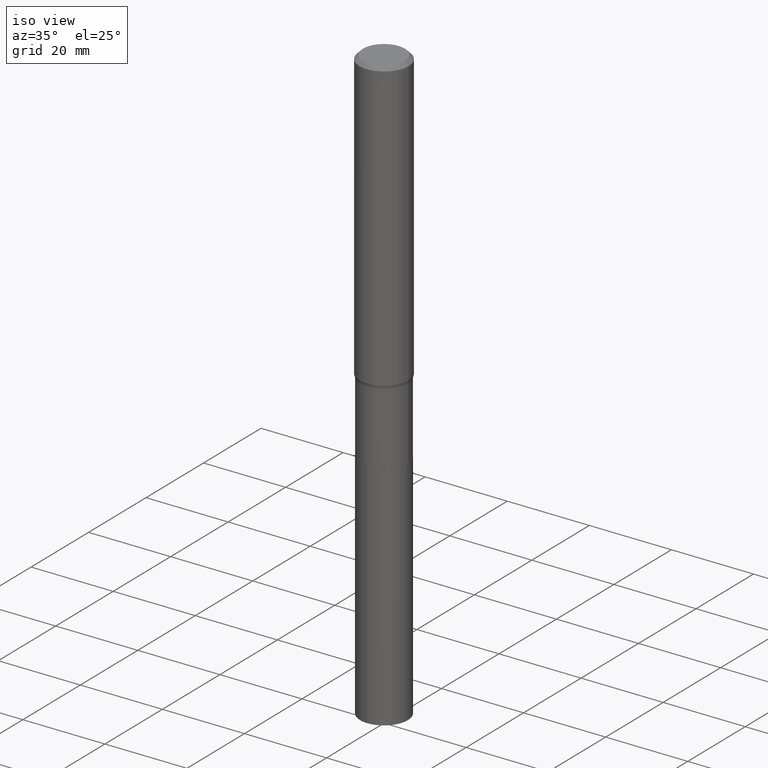
[diagram: clean part render]
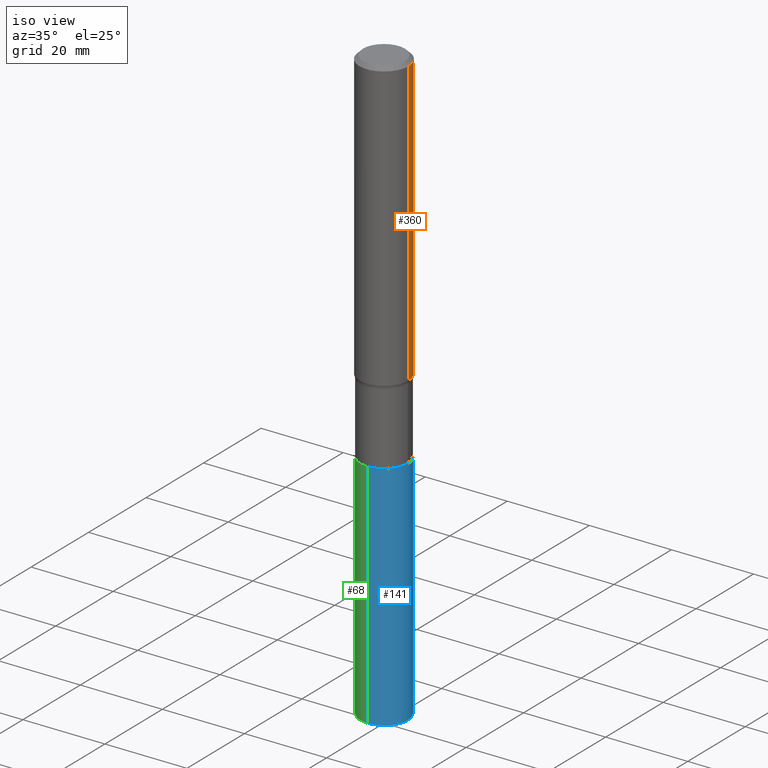
[diagram: same view with three faces highlighted in distinct colors, each labeled with its STEP entity id]
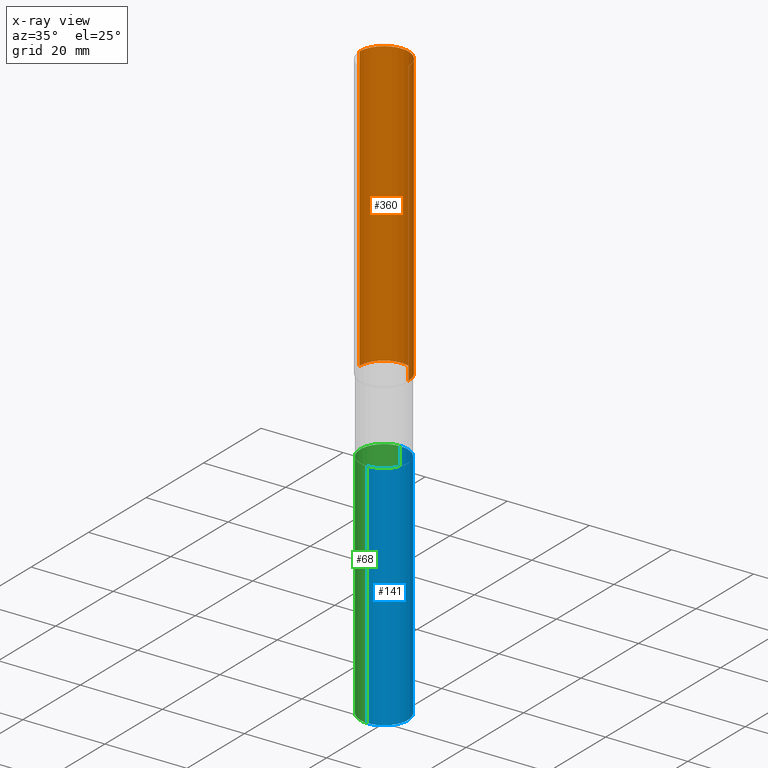
[diagram: x-ray of the same camera — body ghosted, the three highlighted faces saturated]
A machine part, iso view with three faces highlighted in distinct colors.
The next image is the same camera in x-ray (body ghosted, the three faces saturated) — at least one of them is partly hidden behind the body in this view.
Their STEP definitions:

[orange] entity #360 — the highlighted cylindrical surface (edge-blend (fillet) strip) has radius 5.9995 mm, axis along (-0, 0, 1).
#4 = DIRECTION ( 'NONE',  ( -2.445468806185136597E-29, 3.491481338843145583E-15, 1.000000000000000000 ) ) ;
#15 = VECTOR ( 'NONE', #250, 39.37007874015748143 ) ;
#30 = CARTESIAN_POINT ( 'NONE',  ( 0.2362000000000002153, -1.649375784469497708E-15, 1.151752954443001069E-29 ) ) ;
#43 = DIRECTION ( 'NONE',  ( 1.000000000000000000, -6.982962677686269077E-15, 0.000000000000000000 ) ) ;
#55 = ORIENTED_EDGE ( 'NONE', *, *, #57, .F. ) ;
#57 = EDGE_CURVE ( 'NONE', #370, #180, #324, .T. ) ;
#95 = CYLINDRICAL_SURFACE ( 'NONE', #411, 0.2362000000000002153 ) ;
#170 = CARTESIAN_POINT ( 'NONE',  ( -0.2362000000000003264, -7.963913396004768831E-15, -2.761640232929024830 ) ) ;
#175 = LINE ( 'NONE', #409, #15 ) ;
#180 = VERTEX_POINT ( 'NONE', #438 ) ;
#197 = EDGE_LOOP ( 'NONE', ( #268, #247, #207, #55 ) ) ;
#199 = CIRCLE ( 'NONE', #453, 0.2362000000000003819 ) ;
#207 = ORIENTED_EDGE ( 'NONE', *, *, #295, .F. ) ;
#215 = CIRCLE ( 'NONE', #288, 0.2361999999999999933 ) ;
#219 = CARTESIAN_POINT ( 'NONE',  ( 0.000000000000000000, 0.000000000000000000, 0.000000000000000000 ) ) ;
#232 = CARTESIAN_POINT ( 'NONE',  ( -0.2361999999999999933, -3.204657318987311234E-15, -0.03543000000000023908 ) ) ;
#247 = ORIENTED_EDGE ( 'NONE', *, *, #454, .T. ) ;
#250 = DIRECTION ( 'NONE',  ( -2.445468806185136877E-29, 3.491481338843145188E-15, 1.000000000000000000 ) ) ;
#267 = CARTESIAN_POINT ( 'NONE',  ( 6.753505043533784872E-29, -9.642215337870128381E-15, -2.761640232929024830 ) ) ;
#268 = ORIENTED_EDGE ( 'NONE', *, *, #327, .T. ) ;
#281 = FACE_OUTER_BOUND ( 'NONE', #197, .T. ) ;
#288 = AXIS2_PLACEMENT_3D ( 'NONE', #436, #4, #299 ) ;
#291 = DIRECTION ( 'NONE',  ( -2.445468806185136877E-29, 3.491481338843145188E-15, 1.000000000000000000 ) ) ;
#295 = EDGE_CURVE ( 'NONE', #180, #315, #215, .T. ) ;
#299 = DIRECTION ( 'NONE',  ( 1.000000000000000000, -6.982962677686266711E-15, 0.000000000000000000 ) ) ;
#315 = VERTEX_POINT ( 'NONE', #232 ) ;
#324 = LINE ( 'NONE', #30, #402 ) ;
#327 = EDGE_CURVE ( 'NONE', #370, #364, #199, .T. ) ;
#346 = DIRECTION ( 'NONE',  ( 1.000000000000000000, -6.982962677686266711E-15, 4.876176775795935793E-29 ) ) ;
#360 = ADVANCED_FACE ( 'NONE', ( #281 ), #95, .T. ) ;
#364 = VERTEX_POINT ( 'NONE', #170 ) ;
#369 = DIRECTION ( 'NONE',  ( -2.445468806185136597E-29, 3.491481338843145583E-15, 1.000000000000000000 ) ) ;
#370 = VERTEX_POINT ( 'NONE', #447 ) ;
#402 = VECTOR ( 'NONE', #291, 39.37007874015748143 ) ;
#409 = CARTESIAN_POINT ( 'NONE',  ( -0.2362000000000002153, 1.678301941865358169E-15, -1.161852468318209878E-29 ) ) ;
#411 = AXIS2_PLACEMENT_3D ( 'NONE', #219, #416, #346 ) ;
#416 = DIRECTION ( 'NONE',  ( -2.445468806185136597E-29, 3.491481338843145583E-15, 1.000000000000000000 ) ) ;
#436 = CARTESIAN_POINT ( 'NONE',  ( 8.664295980313998742E-31, -1.237031838352134818E-16, -0.03543000000000023908 ) ) ;
#438 = CARTESIAN_POINT ( 'NONE',  ( 0.2361999999999999933, -1.773078968304709711E-15, -0.03543000000000023908 ) ) ;
#447 = CARTESIAN_POINT ( 'NONE',  ( 0.2362000000000003264, -1.129159112233962806E-14, -2.761640232929024830 ) ) ;
#453 = AXIS2_PLACEMENT_3D ( 'NONE', #267, #369, #43 ) ;
#454 = EDGE_CURVE ( 'NONE', #364, #315, #175, .T. ) ;

[blue] entity #141 — the highlighted cylindrical surface (edge-blend (fillet) strip) has radius 5.8001 mm, axis along (-0, 0, 1).
#7 = CARTESIAN_POINT ( 'NONE',  ( -1.594559527449519318E-15, -0.2283500000000199537, -5.708700000000000330 ) ) ;
#11 = EDGE_CURVE ( 'NONE', #209, #405, #154, .T. ) ;
#12 = CARTESIAN_POINT ( 'NONE',  ( 1.622524337108273756E-15, 0.2283499999999878405, -3.481700000000000905 ) ) ;
#35 = VECTOR ( 'NONE', #330, 39.37007874015748143 ) ;
#47 = VERTEX_POINT ( 'NONE', #319 ) ;
#48 = DIRECTION ( 'NONE',  ( -2.445459217107233481E-29, 3.491495070948478760E-15, 1.000000000000000000 ) ) ;
#64 = CARTESIAN_POINT ( 'NONE',  ( 8.514388742494790971E-29, -1.215629057745018152E-14, -3.481700000000000017 ) ) ;
#71 = ORIENTED_EDGE ( 'NONE', *, *, #415, .F. ) ;
#79 = CARTESIAN_POINT ( 'NONE',  ( 1.396042641899260512E-28, -1.993185010045244784E-14, -5.708700000000001218 ) ) ;
#80 = AXIS2_PLACEMENT_3D ( 'NONE', #79, #365, #201 ) ;
#88 = DIRECTION ( 'NONE',  ( -6.982962677686265922E-15, -1.000000000000000000, 2.392684907960817401E-15 ) ) ;
#104 = FACE_OUTER_BOUND ( 'NONE', #169, .T. ) ;
#113 = AXIS2_PLACEMENT_3D ( 'NONE', #64, #220, #88 ) ;
#124 = AXIS2_PLACEMENT_3D ( 'NONE', #152, #423, #356 ) ;
#132 = CARTESIAN_POINT ( 'NONE',  ( -1.594559527449573552E-15, -0.2283500000000121544, -3.481699999999999573 ) ) ;
#141 = ADVANCED_FACE ( 'NONE', ( #104 ), #388, .T. ) ;
#148 = CIRCLE ( 'NONE', #80, 0.2283499999999999974 ) ;
#149 = VERTEX_POINT ( 'NONE', #7 ) ;
#152 = CARTESIAN_POINT ( 'NONE',  ( 8.514388742494790971E-29, -1.215629057745018152E-14, -3.481700000000000017 ) ) ;
#154 = CIRCLE ( 'NONE', #124, 0.2283499999999999974 ) ;
#169 = EDGE_LOOP ( 'NONE', ( #242, #306, #361, #71 ) ) ;
#201 = DIRECTION ( 'NONE',  ( -6.982962677686265922E-15, -1.000000000000000000, 4.785369815921634803E-15 ) ) ;
#209 = VERTEX_POINT ( 'NONE', #331 ) ;
#220 = DIRECTION ( 'NONE',  ( -2.445459217107233481E-29, 3.491495070948479155E-15, 1.000000000000000000 ) ) ;
#231 = EDGE_CURVE ( 'NONE', #47, #405, #234, .T. ) ;
#234 = LINE ( 'NONE', #12, #35 ) ;
#242 = ORIENTED_EDGE ( 'NONE', *, *, #326, .T. ) ;
#245 = VECTOR ( 'NONE', #48, 39.37007874015748143 ) ;
#306 = ORIENTED_EDGE ( 'NONE', *, *, #231, .T. ) ;
#319 = CARTESIAN_POINT ( 'NONE',  ( 1.622524337108300972E-15, 0.2283499999999800689, -5.708700000000002106 ) ) ;
#326 = EDGE_CURVE ( 'NONE', #149, #47, #148, .T. ) ;
#330 = DIRECTION ( 'NONE',  ( -2.445459217107233481E-29, 3.491495070948478760E-15, 1.000000000000000000 ) ) ;
#331 = CARTESIAN_POINT ( 'NONE',  ( -1.594559527449573552E-15, -0.2283500000000121544, -3.481699999999999573 ) ) ;
#348 = LINE ( 'NONE', #132, #245 ) ;
#356 = DIRECTION ( 'NONE',  ( -6.982962677686265922E-15, -1.000000000000000000, 2.392684907960817401E-15 ) ) ;
#361 = ORIENTED_EDGE ( 'NONE', *, *, #11, .F. ) ;
#365 = DIRECTION ( 'NONE',  ( -2.445459217107233481E-29, 3.491495070948479155E-15, 1.000000000000000000 ) ) ;
#388 = CYLINDRICAL_SURFACE ( 'NONE', #113, 0.2283499999999999974 ) ;
#405 = VERTEX_POINT ( 'NONE', #412 ) ;
#412 = CARTESIAN_POINT ( 'NONE',  ( 1.622524337108328582E-15, 0.2283499999999878405, -3.481700000000000905 ) ) ;
#415 = EDGE_CURVE ( 'NONE', #149, #209, #348, .T. ) ;
#423 = DIRECTION ( 'NONE',  ( -2.445459217107233481E-29, 3.491495070948479155E-15, 1.000000000000000000 ) ) ;

[green] entity #68 — the highlighted cylindrical surface (edge-blend (fillet) strip) has radius 5.8001 mm, axis along (-0, 0, 1).
#2 = EDGE_LOOP ( 'NONE', ( #446, #452, #16, #410 ) ) ;
#7 = CARTESIAN_POINT ( 'NONE',  ( -1.594559527449519318E-15, -0.2283500000000199537, -5.708700000000000330 ) ) ;
#12 = CARTESIAN_POINT ( 'NONE',  ( 1.622524337108273756E-15, 0.2283499999999878405, -3.481700000000000905 ) ) ;
#16 = ORIENTED_EDGE ( 'NONE', *, *, #415, .T. ) ;
#35 = VECTOR ( 'NONE', #330, 39.37007874015748143 ) ;
#38 = EDGE_CURVE ( 'NONE', #405, #209, #269, .T. ) ;
#47 = VERTEX_POINT ( 'NONE', #319 ) ;
#48 = DIRECTION ( 'NONE',  ( -2.445459217107233481E-29, 3.491495070948478760E-15, 1.000000000000000000 ) ) ;
#68 = ADVANCED_FACE ( 'NONE', ( #251 ), #253, .T. ) ;
#112 = CARTESIAN_POINT ( 'NONE',  ( 8.514388742494790971E-29, -1.215629057745018152E-14, -3.481700000000000017 ) ) ;
#119 = DIRECTION ( 'NONE',  ( -6.982962677686265922E-15, -1.000000000000000000, 4.785369815921634803E-15 ) ) ;
#130 = CARTESIAN_POINT ( 'NONE',  ( 1.396042641899260512E-28, -1.993185010045244784E-14, -5.708700000000001218 ) ) ;
#132 = CARTESIAN_POINT ( 'NONE',  ( -1.594559527449573552E-15, -0.2283500000000121544, -3.481699999999999573 ) ) ;
#149 = VERTEX_POINT ( 'NONE', #7 ) ;
#209 = VERTEX_POINT ( 'NONE', #331 ) ;
#228 = AXIS2_PLACEMENT_3D ( 'NONE', #463, #353, #289 ) ;
#231 = EDGE_CURVE ( 'NONE', #47, #405, #234, .T. ) ;
#234 = LINE ( 'NONE', #12, #35 ) ;
#245 = VECTOR ( 'NONE', #48, 39.37007874015748143 ) ;
#251 = FACE_OUTER_BOUND ( 'NONE', #2, .T. ) ;
#253 = CYLINDRICAL_SURFACE ( 'NONE', #428, 0.2283499999999999974 ) ;
#256 = DIRECTION ( 'NONE',  ( -6.982962677686265922E-15, -1.000000000000000000, 2.392684907960817401E-15 ) ) ;
#269 = CIRCLE ( 'NONE', #228, 0.2283499999999999974 ) ;
#274 = DIRECTION ( 'NONE',  ( -2.445459217107233481E-29, 3.491495070948479155E-15, 1.000000000000000000 ) ) ;
#289 = DIRECTION ( 'NONE',  ( -6.982962677686265922E-15, -1.000000000000000000, 2.392684907960817401E-15 ) ) ;
#292 = EDGE_CURVE ( 'NONE', #47, #149, #465, .T. ) ;
#319 = CARTESIAN_POINT ( 'NONE',  ( 1.622524337108300972E-15, 0.2283499999999800689, -5.708700000000002106 ) ) ;
#330 = DIRECTION ( 'NONE',  ( -2.445459217107233481E-29, 3.491495070948478760E-15, 1.000000000000000000 ) ) ;
#331 = CARTESIAN_POINT ( 'NONE',  ( -1.594559527449573552E-15, -0.2283500000000121544, -3.481699999999999573 ) ) ;
#348 = LINE ( 'NONE', #132, #245 ) ;
#353 = DIRECTION ( 'NONE',  ( -2.445459217107233481E-29, 3.491495070948479155E-15, 1.000000000000000000 ) ) ;
#358 = AXIS2_PLACEMENT_3D ( 'NONE', #130, #274, #119 ) ;
#405 = VERTEX_POINT ( 'NONE', #412 ) ;
#410 = ORIENTED_EDGE ( 'NONE', *, *, #38, .F. ) ;
#412 = CARTESIAN_POINT ( 'NONE',  ( 1.622524337108328582E-15, 0.2283499999999878405, -3.481700000000000905 ) ) ;
#415 = EDGE_CURVE ( 'NONE', #149, #209, #348, .T. ) ;
#428 = AXIS2_PLACEMENT_3D ( 'NONE', #112, #468, #256 ) ;
#446 = ORIENTED_EDGE ( 'NONE', *, *, #231, .F. ) ;
#452 = ORIENTED_EDGE ( 'NONE', *, *, #292, .T. ) ;
#463 = CARTESIAN_POINT ( 'NONE',  ( 8.514388742494790971E-29, -1.215629057745018152E-14, -3.481700000000000017 ) ) ;
#465 = CIRCLE ( 'NONE', #358, 0.2283499999999999974 ) ;
#468 = DIRECTION ( 'NONE',  ( -2.445459217107233481E-29, 3.491495070948479155E-15, 1.000000000000000000 ) ) ;